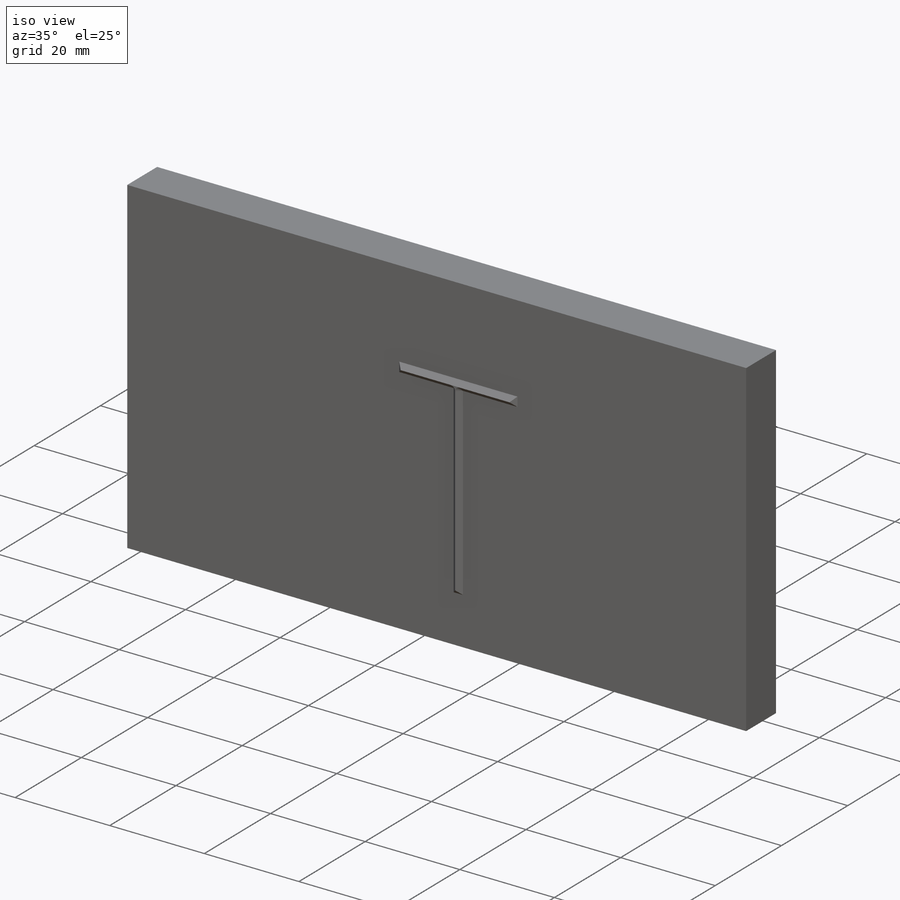
[diagram: iso view]
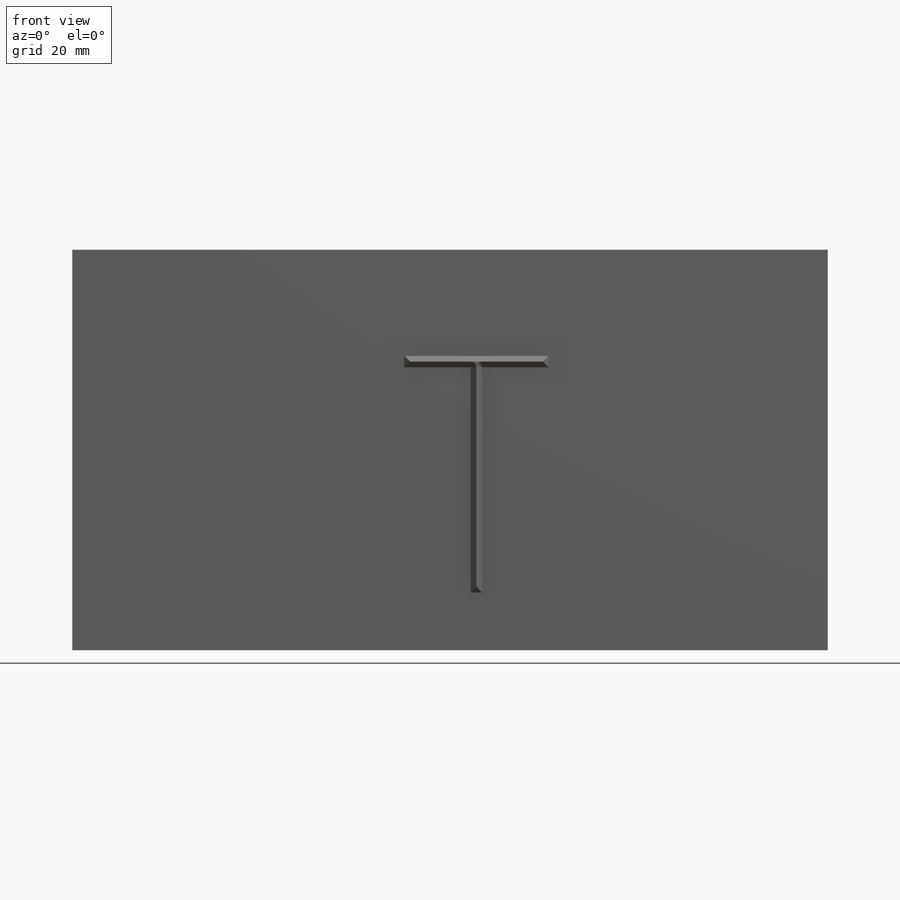
[diagram: front view]
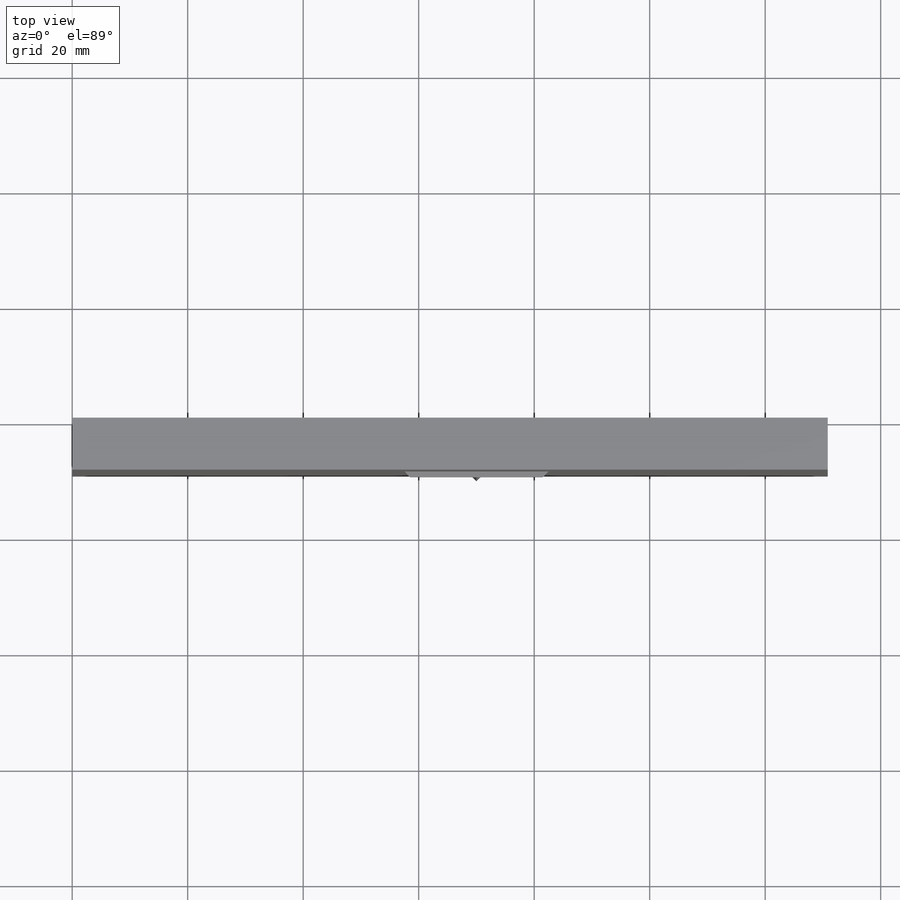
[diagram: top view]
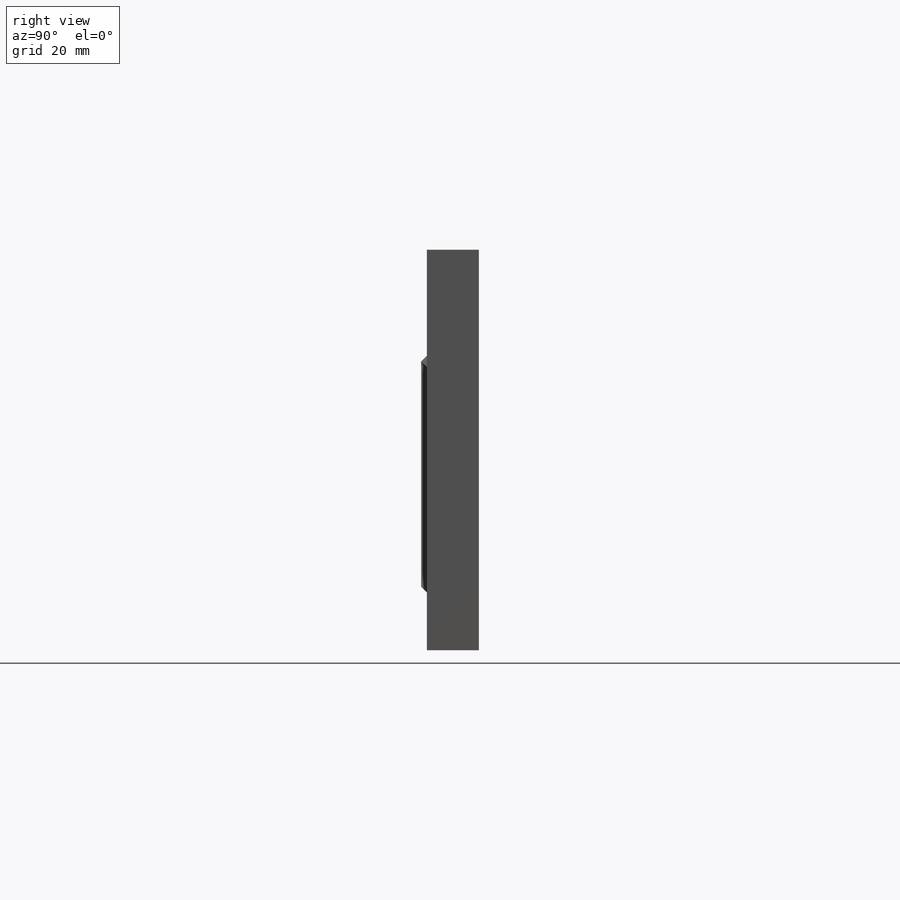
[diagram: right view]
SOLIDWORKS PART (.sldprt)
format: sldprt  version: not decoded by parser v0  size: 325,632 bytes
history: native  units: mm
features: sketch x13, plane x8, revolve x5, sweep x5, material x1, extrude x1, mirror x1, cut_extrude x1 (+7 scaffold rows collapsed)
feature tree (42):
  scaffold x7  (default folders/planes/origin — collapsed)
  material  "Material <nicht festgelegt>"
  plane  "Ebene vorne"
  plane  "Ebene oben"
  plane  "Ebene rechts"
  sketch  "Skizze1"  dims[D1=~69.372083mm D2=~130.844863mm]
  extrude  "Aufsatz-Linear austragen1"  Depth=10mm
  sketch  "Skizze2"  dims[D1=25.0mm D2=40.0mm D3=10.0mm D4=70.0mm D7=2.0mm D5=1.0mm D6=1.0mm]
  plane  "Ebene4"
  sketch  "Skizze3"  dims[c1.D1=1.0mm c1.D2=0.99mm c1.D3=0.95mm c1.D4=0.95mm c2.D4=45.0deg]
  revolve  "Rotation1"  Angle=360deg
  sketch  "Skizze5"
  sweep  "Schnitt-Austragung2"
  plane  "Ebene5"
  sketch  "Skizze6"  dims[c1.D1=~0.98884mm c2.D1=45.0deg c2.D2=0.99mm c2.D3=1.0mm c2.D4=1.0mm]
  revolve  "Rotation2"  Angle=360deg
  sketch  "Skizze7"
  sweep  "Schnitt-Austragung3"
  plane  "Ebene6"
  sketch  "Skizze8"  dims[c1.D1=0.99mm c1.D2=0.99mm c2.D2=45.0deg c2.D3=1.0mm c2.D4=1.0mm c2.D5=1.0mm]
  revolve  "Rotation3"  Angle=360deg
  sketch  "Skizze9"
  sweep  "Schnitt-Austragung4"
  plane  "Ebene7"
  mirror  "Spiegeln1"
  plane  "Ebene8"
  sketch  "Skizze10"  dims[c1.D1=0.99mm c1.D2=0.99mm c2.D2=45.0deg c2.D3=1.0mm]
  revolve  "Rotation4"  Angle=360deg
  sketch  "Skizze11"
  sweep  "Schnitt-Austragung5"
  revolve  "Rotation5"  [1 undecoded]
  sketch  "Skizze3<2>"  dims[D1=360.0deg]
  sketch  "Skizze12"
  sweep  "Schnitt-Austragung6"
  sketch  "Skizze13"  dims[D1=0.0mm]
  cut_extrude  "Schnitt-Linear austragen1"  [1 undecoded]
decode coverage: 13 of 26 modeling features carry decoded parameters
note: ~ marks probable driven/reference dimensions
note: 2 parameter values undecoded
summary: profile_refs inferred from adjacent sketches, not decoded
note: suppression state not decoded; provenance and decode notes live in map.json
